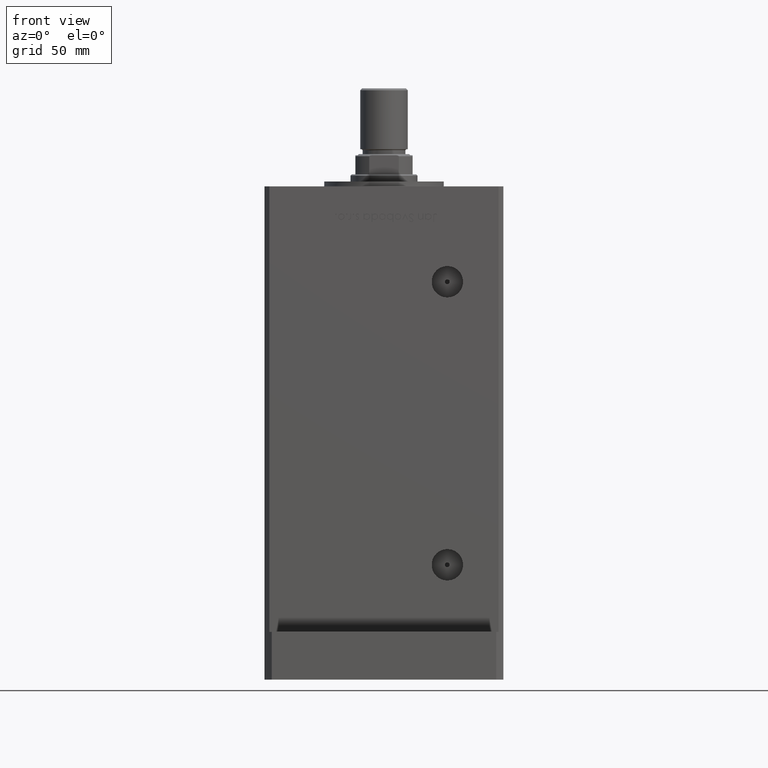
[diagram: clean part render]
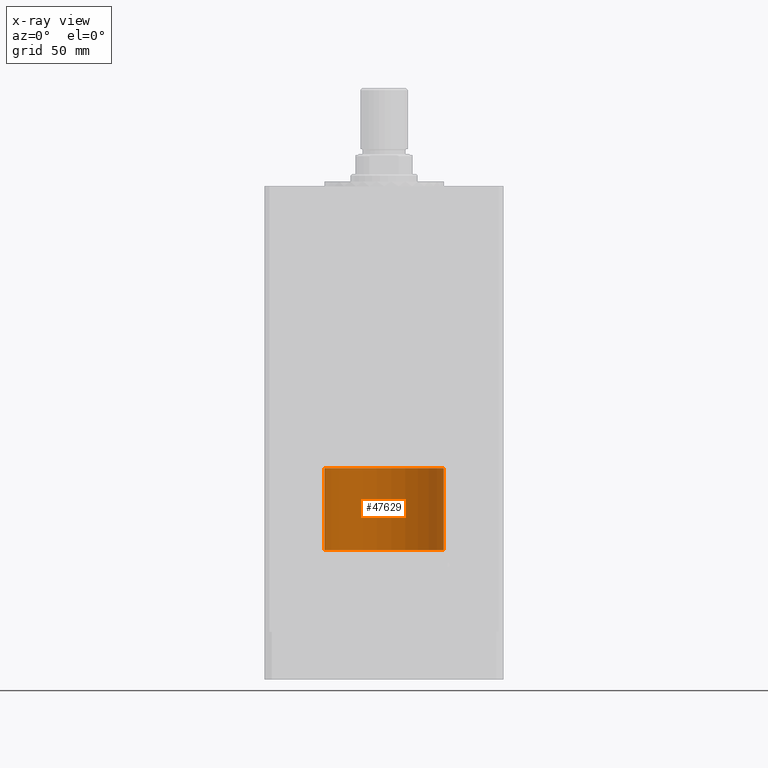
[diagram: x-ray — body ghosted, one internal face saturated and labeled with its STEP entity id]
A machine part, front view, then the same camera in x-ray: the body is ghosted and one INTERNAL B-rep face — a face not visible from any outside direction — is saturated and labeled: STEP entity #47629.
In plain terms, the highlighted cylindrical surface (partial cylindrical patch) has radius 25 mm, axis along (-0, -0, -1).
Its self-contained STEP definition (entity closure, byte-faithful):
#932 = ORIENTED_EDGE ( 'NONE', *, *, #46200, .F. ) ;
#1419 = DIRECTION ( 'NONE',  ( -1.000000000000000000, 0.000000000000000000, 0.000000000000000000 ) ) ;
#1675 = CARTESIAN_POINT ( 'NONE',  ( 0.000000000000000000, 0.000000000000000000, 34.25000000000000000 ) ) ;
#2569 = LINE ( 'NONE', #19566, #30715 ) ;
#2846 = DIRECTION ( 'NONE',  ( -0.000000000000000000, -0.000000000000000000, -1.000000000000000000 ) ) ;
#3909 = LINE ( 'NONE', #33211, #6032 ) ;
#5464 = VERTEX_POINT ( 'NONE', #41313 ) ;
#5668 = ORIENTED_EDGE ( 'NONE', *, *, #13305, .F. ) ;
#6032 = VECTOR ( 'NONE', #45525, 1000.000000000000000 ) ;
#7102 = CARTESIAN_POINT ( 'NONE',  ( 0.000000000000000000, 0.000000000000000000, 34.25000000000000000 ) ) ;
#9555 = CARTESIAN_POINT ( 'NONE',  ( 25.00000000000000000, 3.061616997868383043E-15, 0.000000000000000000 ) ) ;
#13305 = EDGE_CURVE ( 'NONE', #5464, #48483, #3909, .T. ) ;
#19566 = CARTESIAN_POINT ( 'NONE',  ( 25.00000000000000000, 3.061616997868383043E-15, 34.25000000000000000 ) ) ;
#20268 = AXIS2_PLACEMENT_3D ( 'NONE', #7102, #23818, #40513 ) ;
#21871 = AXIS2_PLACEMENT_3D ( 'NONE', #21959, #38099, #46574 ) ;
#21959 = CARTESIAN_POINT ( 'NONE',  ( 0.000000000000000000, 0.000000000000000000, 0.000000000000000000 ) ) ;
#23723 = ORIENTED_EDGE ( 'NONE', *, *, #40183, .T. ) ;
#23818 = DIRECTION ( 'NONE',  ( 0.000000000000000000, 0.000000000000000000, 1.000000000000000000 ) ) ;
#24684 = AXIS2_PLACEMENT_3D ( 'NONE', #1675, #26877, #1419 ) ;
#26877 = DIRECTION ( 'NONE',  ( -0.000000000000000000, -0.000000000000000000, -1.000000000000000000 ) ) ;
#27071 = CIRCLE ( 'NONE', #21871, 25.00000000000000000 ) ;
#28410 = VERTEX_POINT ( 'NONE', #35057 ) ;
#30715 = VECTOR ( 'NONE', #2846, 1000.000000000000000 ) ;
#33211 = CARTESIAN_POINT ( 'NONE',  ( -25.00000000000000000, 0.000000000000000000, 34.25000000000000000 ) ) ;
#35057 = CARTESIAN_POINT ( 'NONE',  ( 25.00000000000000000, 3.061616997868383043E-15, 34.25000000000000000 ) ) ;
#38099 = DIRECTION ( 'NONE',  ( 0.000000000000000000, 0.000000000000000000, 1.000000000000000000 ) ) ;
#38937 = CYLINDRICAL_SURFACE ( 'NONE', #24684, 25.00000000000000000 ) ;
#40183 = EDGE_CURVE ( 'NONE', #47035, #48483, #27071, .T. ) ;
#40513 = DIRECTION ( 'NONE',  ( 1.000000000000000000, 0.000000000000000000, 0.000000000000000000 ) ) ;
#40550 = EDGE_LOOP ( 'NONE', ( #932, #47732, #23723, #5668 ) ) ;
#41254 = CIRCLE ( 'NONE', #20268, 25.00000000000000000 ) ;
#41313 = CARTESIAN_POINT ( 'NONE',  ( -25.00000000000000000, 0.000000000000000000, 34.25000000000000000 ) ) ;
#43836 = FACE_OUTER_BOUND ( 'NONE', #40550, .T. ) ;
#44992 = EDGE_CURVE ( 'NONE', #28410, #47035, #2569, .T. ) ;
#45525 = DIRECTION ( 'NONE',  ( -0.000000000000000000, -0.000000000000000000, -1.000000000000000000 ) ) ;
#45600 = CARTESIAN_POINT ( 'NONE',  ( -25.00000000000000000, 0.000000000000000000, 0.000000000000000000 ) ) ;
#46200 = EDGE_CURVE ( 'NONE', #28410, #5464, #41254, .T. ) ;
#46574 = DIRECTION ( 'NONE',  ( 1.000000000000000000, 0.000000000000000000, 0.000000000000000000 ) ) ;
#47035 = VERTEX_POINT ( 'NONE', #9555 ) ;
#47629 = ADVANCED_FACE ( 'NONE', ( #43836 ), #38937, .T. ) ;
#47732 = ORIENTED_EDGE ( 'NONE', *, *, #44992, .T. ) ;
#48483 = VERTEX_POINT ( 'NONE', #45600 ) ;